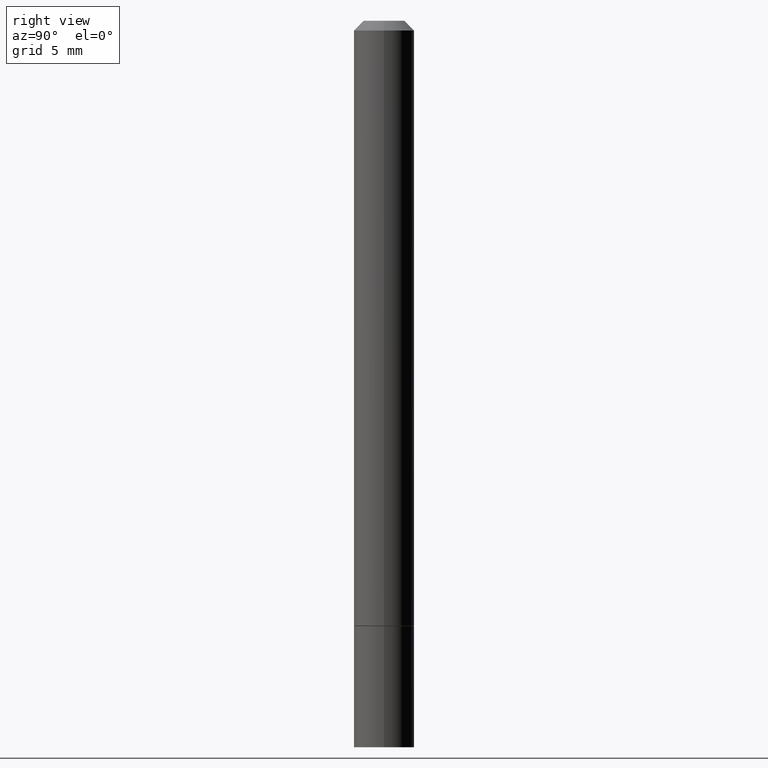
[diagram: clean part render]
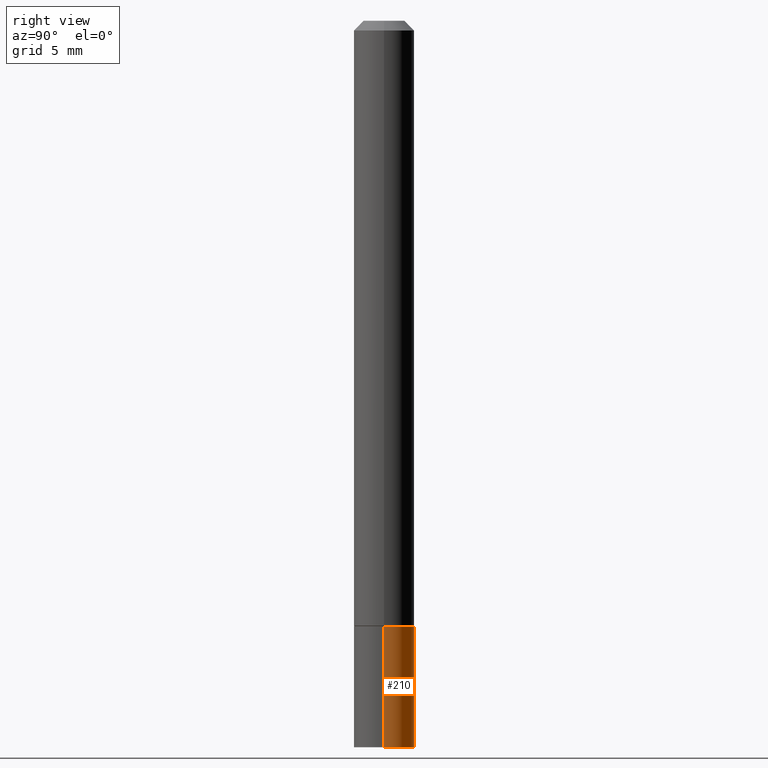
[diagram: same view with one face highlighted and labeled with its STEP entity id]
A machine part, right view. The second image highlights one B-rep face of the part: STEP entity #210.
In plain terms, the highlighted cylindrical surface (edge-blend (fillet) strip) has radius 1.5875 mm, axis along (-0, 0, 1).
Its self-contained STEP definition (entity closure, byte-faithful):
#13 = AXIS2_PLACEMENT_3D ( 'NONE', #262, #348, #36 ) ;
#15 = VERTEX_POINT ( 'NONE', #217 ) ;
#16 = DIRECTION ( 'NONE',  ( -2.445468806185136877E-29, 3.491481338843145188E-15, 1.000000000000000000 ) ) ;
#35 = CARTESIAN_POINT ( 'NONE',  ( 0.06250000000000001388, -4.364351673553918173E-16, 3.047610484872460571E-30 ) ) ;
#36 = DIRECTION ( 'NONE',  ( 1.000000000000000000, -6.982962677686269077E-15, 0.000000000000000000 ) ) ;
#53 = DIRECTION ( 'NONE',  ( 1.000000000000000000, -6.982962677686267499E-15, 4.876176775795935793E-29 ) ) ;
#57 = CARTESIAN_POINT ( 'NONE',  ( 0.000000000000000000, 0.000000000000000000, 0.000000000000000000 ) ) ;
#70 = VERTEX_POINT ( 'NONE', #234 ) ;
#73 = CARTESIAN_POINT ( 'NONE',  ( 3.668203209277704895E-29, -5.237222008264718177E-15, -1.500000000000000222 ) ) ;
#79 = DIRECTION ( 'NONE',  ( -2.445468806185136597E-29, 3.491481338843145583E-15, 1.000000000000000000 ) ) ;
#86 = ORIENTED_EDGE ( 'NONE', *, *, #316, .T. ) ;
#97 = DIRECTION ( 'NONE',  ( -2.445468806185136597E-29, 3.491481338843145583E-15, 1.000000000000000000 ) ) ;
#102 = VERTEX_POINT ( 'NONE', #286 ) ;
#145 = DIRECTION ( 'NONE',  ( -2.445468806185136877E-29, 3.491481338843145188E-15, 1.000000000000000000 ) ) ;
#153 = CIRCLE ( 'NONE', #360, 0.06250000000000001388 ) ;
#169 = AXIS2_PLACEMENT_3D ( 'NONE', #57, #79, #53 ) ;
#175 = VERTEX_POINT ( 'NONE', #235 ) ;
#178 = CARTESIAN_POINT ( 'NONE',  ( -0.06250000000000001388, 4.440892098500627148E-16, -3.074334431409317165E-30 ) ) ;
#200 = VECTOR ( 'NONE', #145, 39.37007874015748143 ) ;
#210 = ADVANCED_FACE ( 'NONE', ( #261 ), #338, .T. ) ;
#217 = CARTESIAN_POINT ( 'NONE',  ( 0.06250000000000001388, -4.800786840909324141E-15, -1.250000000000000000 ) ) ;
#218 = EDGE_LOOP ( 'NONE', ( #86, #273, #285, #353 ) ) ;
#222 = EDGE_CURVE ( 'NONE', #102, #70, #284, .T. ) ;
#232 = CIRCLE ( 'NONE', #13, 0.06250000000000001388 ) ;
#234 = CARTESIAN_POINT ( 'NONE',  ( -0.06250000000000001388, -4.356697631059263102E-15, -1.250000000000000000 ) ) ;
#235 = CARTESIAN_POINT ( 'NONE',  ( 0.06250000000000001388, -5.673657175620109846E-15, -1.500000000000000222 ) ) ;
#241 = EDGE_CURVE ( 'NONE', #175, #15, #352, .T. ) ;
#259 = VECTOR ( 'NONE', #16, 39.37007874015748143 ) ;
#261 = FACE_OUTER_BOUND ( 'NONE', #218, .T. ) ;
#262 = CARTESIAN_POINT ( 'NONE',  ( 3.056836007731421306E-29, -4.364351673553932471E-15, -1.250000000000000000 ) ) ;
#273 = ORIENTED_EDGE ( 'NONE', *, *, #222, .T. ) ;
#275 = EDGE_CURVE ( 'NONE', #15, #70, #232, .T. ) ;
#284 = LINE ( 'NONE', #178, #200 ) ;
#285 = ORIENTED_EDGE ( 'NONE', *, *, #275, .F. ) ;
#286 = CARTESIAN_POINT ( 'NONE',  ( -0.06250000000000001388, -4.356697631059263102E-15, -1.500000000000000222 ) ) ;
#316 = EDGE_CURVE ( 'NONE', #175, #102, #153, .T. ) ;
#338 = CYLINDRICAL_SURFACE ( 'NONE', #169, 0.06250000000000001388 ) ;
#348 = DIRECTION ( 'NONE',  ( -2.445468806185136597E-29, 3.491481338843145583E-15, 1.000000000000000000 ) ) ;
#352 = LINE ( 'NONE', #35, #259 ) ;
#353 = ORIENTED_EDGE ( 'NONE', *, *, #241, .F. ) ;
#360 = AXIS2_PLACEMENT_3D ( 'NONE', #73, #97, #362 ) ;
#362 = DIRECTION ( 'NONE',  ( 1.000000000000000000, -6.982962677686261189E-15, 0.000000000000000000 ) ) ;